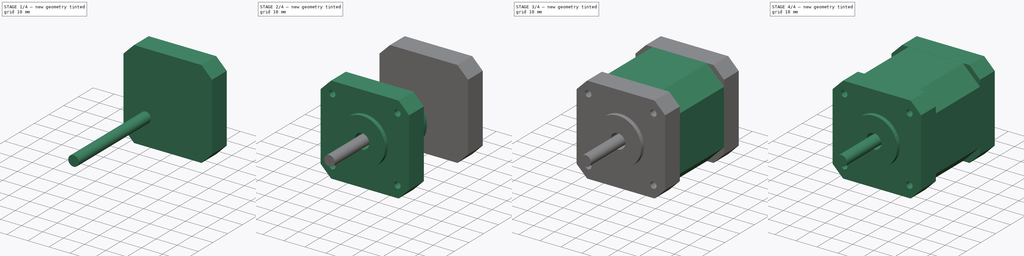
[diagram: build sequence overview — one tinted view per stage of 4, left to right]
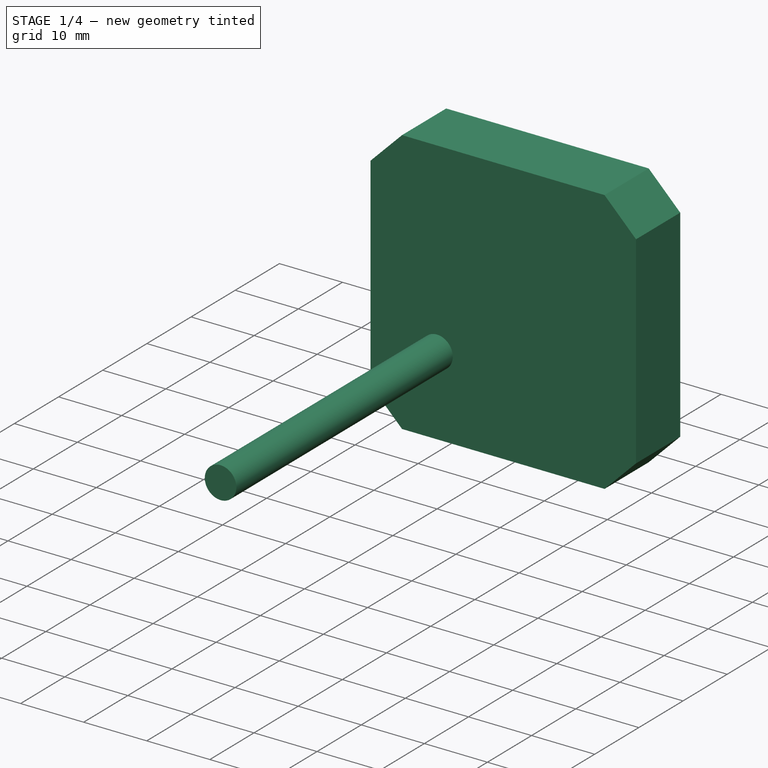
[diagram: stage 1 of 4 — iso view after this stage's code; geometry added in this stage tinted green]
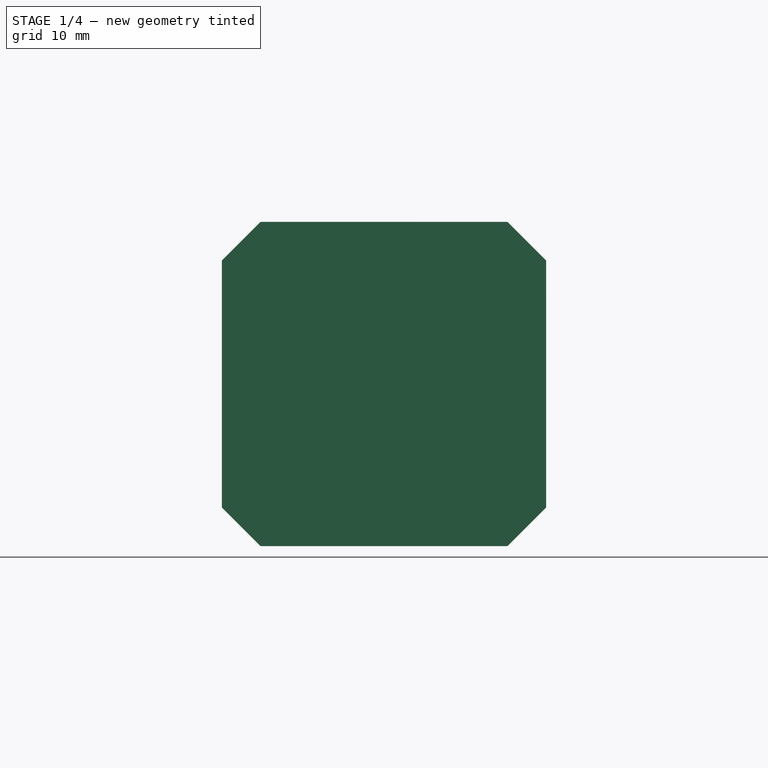
[diagram: stage 1 of 4 — front view after this stage's code; geometry added in this stage tinted green]
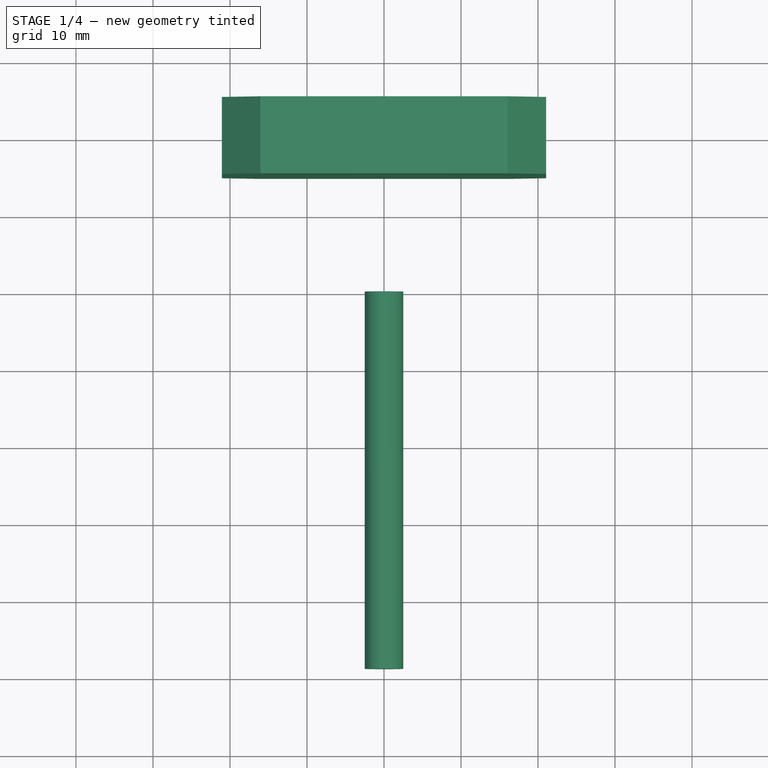
[diagram: stage 1 of 4 — top view after this stage's code; geometry added in this stage tinted green]
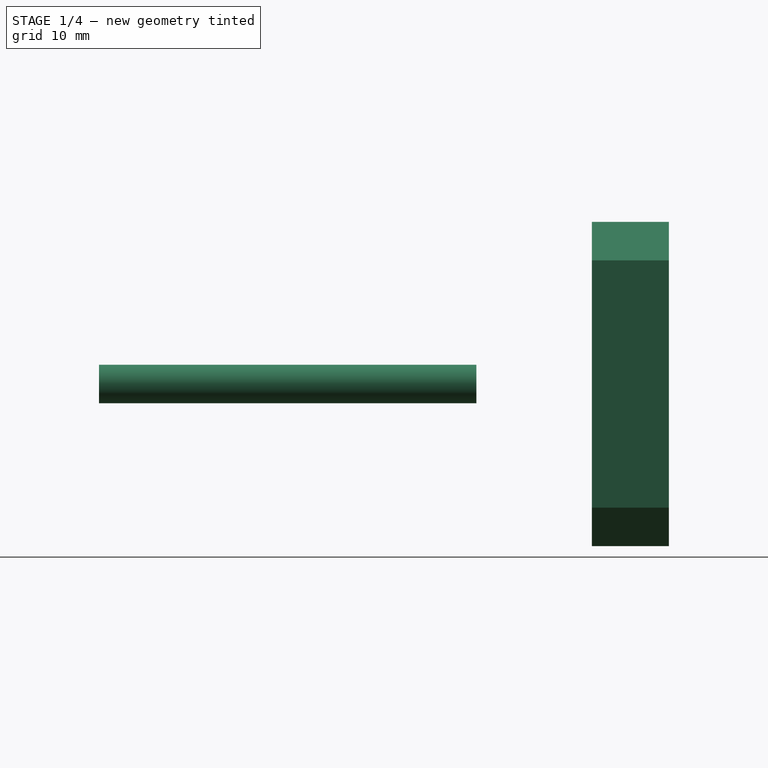
[diagram: stage 1 of 4 — right view after this stage's code; geometry added in this stage tinted green]
FCSTD DOCUMENT  (FreeCAD 0.15R4671 (Git))
Label: nema17
License: All rights reserved
LicenseURL: http://en.wikipedia.org/wiki/All_rights_reserved
objects: Sketcher::SketchObject×6, PartDesign::Pad×4, Part::MultiFuse×4, PartDesign::Revolution×1, PartDesign::Pocket×1
note: 22 computed .brp shape members not serialized (recipe doc carries the construction recipe); baked Part::Feature solids carry a one-line shape summary decoded from their .brp

FEATURE [Sketcher::SketchObject] Sketch004  label="back-sketch"
  Placement = pos=(0,15,0) rot=(0,0.707107,0.707107;3.14159rad)
  sketch-geometry (8):
    g0: LineSegment StartX=-21.05 StartY=-16.05 StartZ=0 EndX=-21.05 EndY=16.05 EndZ=0
    g1: LineSegment StartX=-21.05 StartY=16.05 StartZ=0 EndX=-16.05 EndY=21.05 EndZ=0
    g2: LineSegment StartX=-16.05 StartY=21.05 StartZ=0 EndX=16.05 EndY=21.05 EndZ=0
    g3: LineSegment StartX=16.05 StartY=21.05 StartZ=0 EndX=21.05 EndY=16.05 EndZ=0
    g4: LineSegment StartX=21.05 StartY=16.05 StartZ=0 EndX=21.05 EndY=-16.05 EndZ=0
    g5: LineSegment StartX=21.05 StartY=-16.05 StartZ=0 EndX=16.05 EndY=-21.05 EndZ=0
    g6: LineSegment StartX=16.05 StartY=-21.05 StartZ=0 EndX=-16.05 EndY=-21.05 EndZ=0
    g7: LineSegment StartX=-16.05 StartY=-21.05 StartZ=0 EndX=-21.05 EndY=-16.05 EndZ=0
  constraints (23):
    c: Coincident(g0,g1)
    c: Coincident(g1,g2)
    c: Horizontal(g2)
    c: Coincident(g2,g3)
    c: Coincident(g3,g4)
    c: Vertical(g4)
    c: Coincident(g4,g5)
    c: Coincident(g5,g6)
    c: Horizontal(g6)
    c: Coincident(g6,g7)
    c: Coincident(g0,g7)
    c: Vertical(g0)
    c: Equal(g5,g7)
    c: Equal(g7,g1)
    c: Equal(g1,g3)
    c: Equal(g2,g0)
    c: Equal(g0,g6)
    c: Equal(g6,g4)
    c: Symmetric(g1,g6,g-1)
    c: Symmetric(g0,g4,g-2)
    c: DistanceY(g2,g5) = -42.1
    c: DistanceX(g4,g0) = -42.1
    c: DistanceX(g1,g0) = -5
FEATURE [PartDesign::Pad] Pad002  label="back"
  Length = 10
  Length2 = 100
  Placement = pos=(0,15,0) rot=(0,0.707107,0.707107;3.14159rad)
  Sketch = -> Sketch004
  Type = 0
FEATURE [Sketcher::SketchObject] Sketch005  label="shaft-sketch"
  Placement = pos=(0,0,0) rot=(1,0,0;1.5708rad)
  sketch-geometry (1):
    g0: Circle CenterX=0 CenterY=0 CenterZ=0 NormalX=0 NormalY=0 NormalZ=1 Radius=2.5
  constraints (2):
    c: Coincident(g0,g-1)
    c: Radius(g0) = 2.5
FEATURE [PartDesign::Pad] Pad003  label="shaft"
  Length = 49
  Length2 = 100
  Placement = pos=(0,0,0) rot=(1,0,0;1.5708rad)
  Sketch = -> Sketch005
  Type = 0
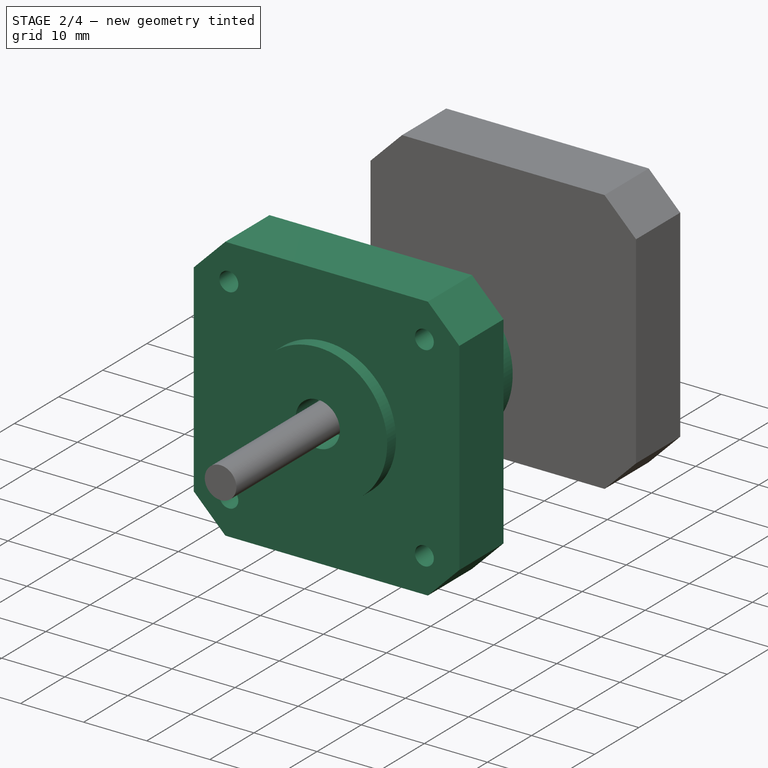
[diagram: stage 2 of 4 — iso view after this stage's code; geometry added in this stage tinted green]
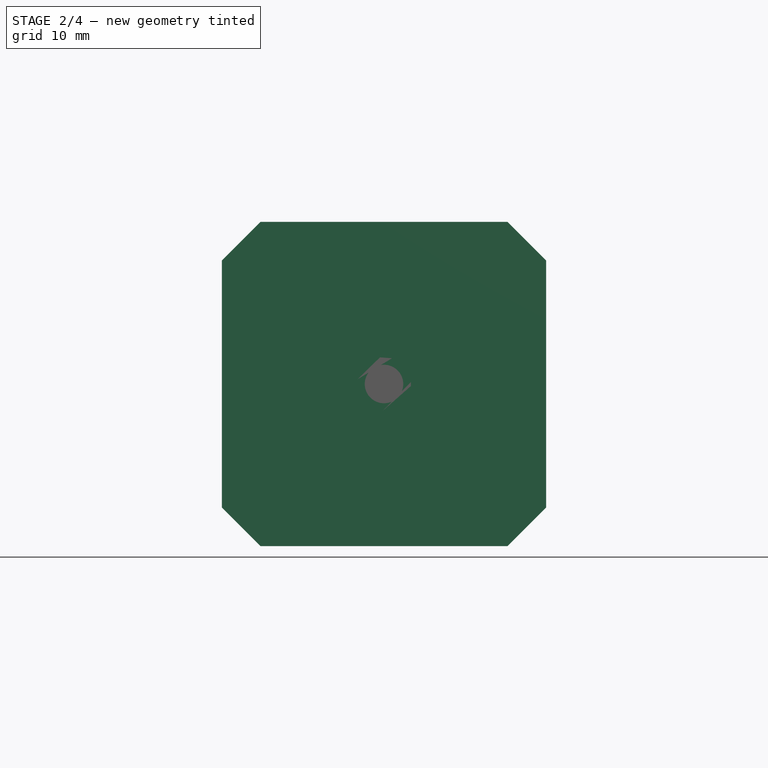
[diagram: stage 2 of 4 — front view after this stage's code; geometry added in this stage tinted green]
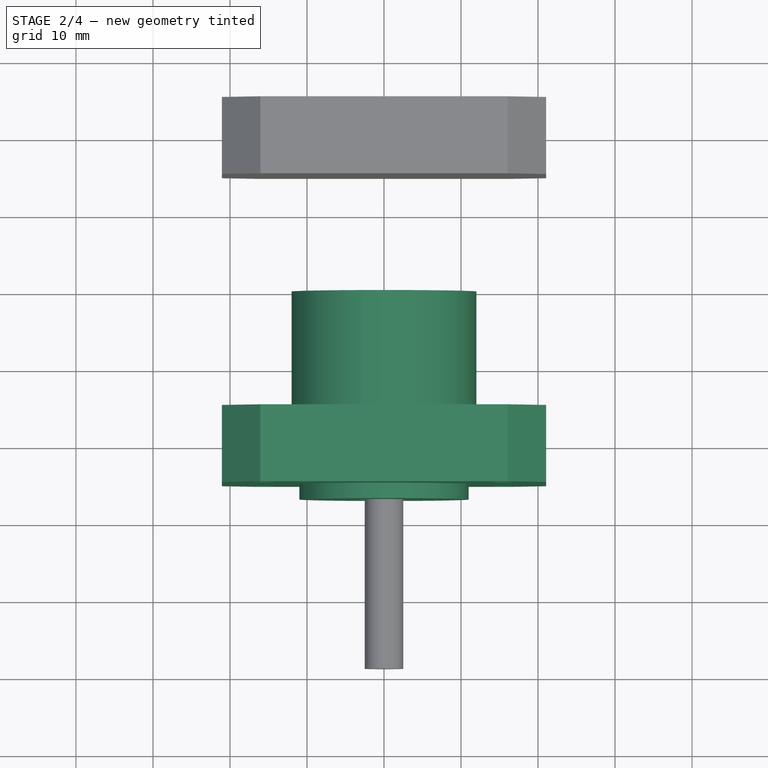
[diagram: stage 2 of 4 — top view after this stage's code; geometry added in this stage tinted green]
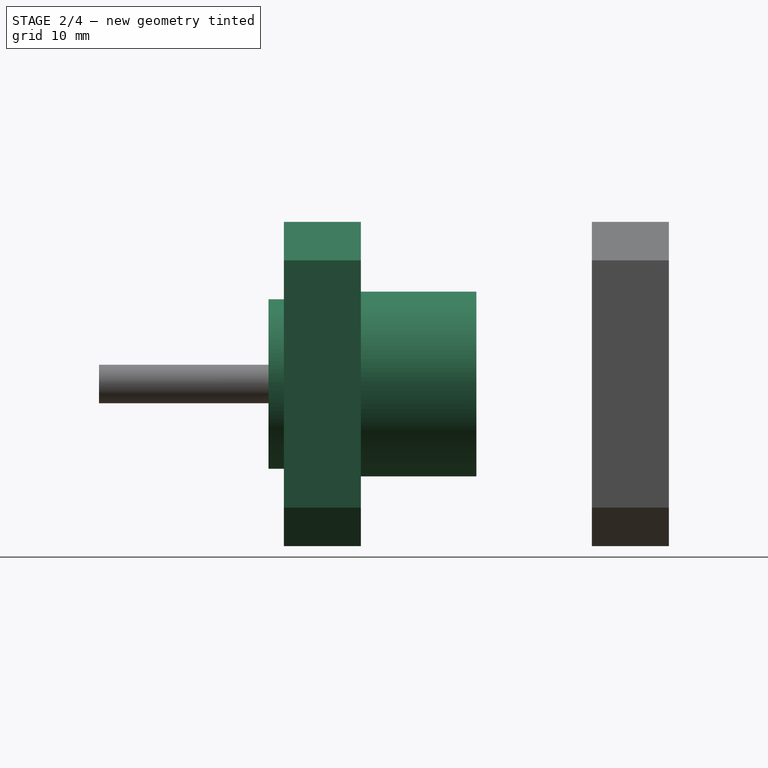
[diagram: stage 2 of 4 — right view after this stage's code; geometry added in this stage tinted green]
FEATURE [Sketcher::SketchObject] Sketch001  label="center-sketch"
  Placement = pos=(0,0,0) rot=(0.57735,0.57735,0.57735;2.0944rad)
  sketch-geometry (8):
    g0: LineSegment StartX=-24 StartY=12 StartZ=0 EndX=0 EndY=12 EndZ=0
    g1: LineSegment StartX=-27 StartY=11 StartZ=0 EndX=-24 EndY=11 EndZ=0
    g2: LineSegment StartX=-24 StartY=11 StartZ=0 EndX=-24 EndY=12 EndZ=0
    g3: LineSegment StartX=-27 StartY=11 StartZ=0 EndX=-27 EndY=3.5 EndZ=0
    g4: LineSegment StartX=-27 StartY=3.5 StartZ=0 EndX=-22 EndY=3.5 EndZ=0
    g5: LineSegment StartX=-22 StartY=3.5 StartZ=0 EndX=-22 EndY=0 EndZ=0
    g6: LineSegment StartX=-22 StartY=0 StartZ=0 EndX=0 EndY=0 EndZ=0
    g7: LineSegment StartX=0 StartY=0 StartZ=0 EndX=0 EndY=12 EndZ=0
  constraints (23):
    c: Horizontal(g0)
    c: Coincident(g1,g2)
    c: Coincident(g2,g0)
    c: Coincident(g1,g3)
    c: Vertical(g3)
    c: Coincident(g3,g4)
    c: Horizontal(g4)
    c: Coincident(g4,g5)
    c: Vertical(g5)
    c: Vertical(g2)
    c: DistanceX(g0,g0) = 24
    c: DistanceX(g1,g1) = 3
    c: Coincident(g5,g6)
    c: Coincident(g6,g-1)
    c: Horizontal(g6)
    c: Coincident(g6,g7)
    c: Coincident(g7,g0)
    c: Vertical(g7)
    c: DistanceY(g5,g3) = 3.5
    c: DistanceY(g-1,g0) = 12
    c: DistanceY(g1,g5) = -11
    c: Horizontal(g1)
    c: DistanceX(g3,g5) = 5
FEATURE [PartDesign::Revolution] Revolution  label="center"
  Angle = 360
  Axis = (0,1,0)
  Base = (0,0,0)
  Placement = pos=(0,0,0) rot=(0.57735,0.57735,0.57735;2.0944rad)
  ReferenceAxis = -> Sketch001 [H_Axis]
  Sketch = -> Sketch001
FEATURE [Sketcher::SketchObject] Sketch002  label="front-sketch"
  Placement = pos=(0,-15,0) rot=(1,0,0;1.5708rad)
  sketch-geometry (9):
    g0: LineSegment StartX=-21.05 StartY=-16.05 StartZ=0 EndX=-21.05 EndY=16.05 EndZ=0
    g1: LineSegment StartX=-21.05 StartY=16.05 StartZ=0 EndX=-16.05 EndY=21.05 EndZ=0
    g2: LineSegment StartX=-16.05 StartY=21.05 StartZ=0 EndX=16.05 EndY=21.05 EndZ=0
    g3: LineSegment StartX=16.05 StartY=21.05 StartZ=0 EndX=21.05 EndY=16.05 EndZ=0
    g4: LineSegment StartX=21.05 StartY=16.05 StartZ=0 EndX=21.05 EndY=-16.05 EndZ=0
    g5: LineSegment StartX=21.05 StartY=-16.05 StartZ=0 EndX=16.05 EndY=-21.05 EndZ=0
    g6: LineSegment StartX=16.05 StartY=-21.05 StartZ=0 EndX=-16.05 EndY=-21.05 EndZ=0
    g7: LineSegment StartX=-16.05 StartY=-21.05 StartZ=0 EndX=-21.05 EndY=-16.05 EndZ=0
    g8: Circle CenterX=0 CenterY=0 CenterZ=0 NormalX=0 NormalY=0 NormalZ=1 Radius=11
  constraints (25):
    c: Vertical(g0)
    c: Coincident(g0,g1)
    c: Coincident(g1,g2)
    c: Horizontal(g2)
    c: Coincident(g2,g3)
    c: Coincident(g3,g4)
    c: Vertical(g4)
    c: Coincident(g4,g5)
    c: Coincident(g5,g6)
    c: Coincident(g6,g7)
    c: Coincident(g7,g0)
    c: Horizontal(g6)
    c: Equal(g1,g3)
    c: Equal(g3,g5)
    c: Equal(g5,g7)
    c: Equal(g6,g0)
    c: Equal(g0,g2)
    c: Equal(g2,g4)
    c: Symmetric(g1,g6,g-1)
    c: Symmetric(g0,g3,g-2)
    c: DistanceY(g2,g5) = -42.1
    c: DistanceX(g4,g0) = -42.1
    c: DistanceX(g1,g0) = -5
    c: Coincident(g8,g-1)
    c: Radius(g8) = 11
FEATURE [PartDesign::Pad] Pad001  label="front"
  Length = 10
  Length2 = 100
  Placement = pos=(0,-15,0) rot=(1,0,0;1.5708rad)
  Sketch = -> Sketch002
  Type = 0
FEATURE [Sketcher::SketchObject] Sketch003  label="front-holes-sketch"
  Placement = pos=(0,-25,0) rot=(1,0,0;1.5708rad)
  Support = -> Pad001 [Face11]
  sketch-geometry (8):
    g0: LineSegment [constr] StartX=-15.5 StartY=15.5 StartZ=0 EndX=15.5 EndY=15.5 EndZ=0
    g1: LineSegment [constr] StartX=15.5 StartY=15.5 StartZ=0 EndX=15.5 EndY=-15.5 EndZ=0
    g2: LineSegment [constr] StartX=15.5 StartY=-15.5 StartZ=0 EndX=-15.5 EndY=-15.5 EndZ=0
    g3: LineSegment [constr] StartX=-15.5 StartY=-15.5 StartZ=0 EndX=-15.5 EndY=15.5 EndZ=0
    g4: Circle CenterX=-15.5 CenterY=15.5 CenterZ=0 NormalX=0 NormalY=0 NormalZ=1 Radius=1.5
    g5: Circle CenterX=15.5 CenterY=15.5 CenterZ=0 NormalX=0 NormalY=0 NormalZ=1 Radius=1.5
    g6: Circle CenterX=-15.5 CenterY=-15.5 CenterZ=0 NormalX=0 NormalY=0 NormalZ=1 Radius=1.5
    g7: Circle CenterX=15.5 CenterY=-15.5 CenterZ=0 NormalX=0 NormalY=0 NormalZ=1 Radius=1.5
  constraints (19):
    c: Coincident(g0,g1)
    c: Coincident(g1,g2)
    c: Coincident(g2,g3)
    c: Coincident(g3,g0)
    c: Horizontal(g0)
    c: Horizontal(g2)
    c: Vertical(g1)
    c: Vertical(g3)
    c: Symmetric(g2,g0,g-1)
    c: Coincident(g4,g0)
    c: Coincident(g5,g0)
    c: Coincident(g6,g2)
    c: Coincident(g7,g1)
    c: Radius(g4) = 1.5
    c: Equal(g4,g5)
    c: Equal(g4,g7)
    c: Equal(g4,g6)
    c: DistanceX(g2,g1) = 31
    c: Equal(g0,g3)
FEATURE [PartDesign::Pocket] Pocket  label="front-holes"
  Length = 4.5
  Placement = pos=(0,-15,0) rot=(1,0,0;1.5708rad)
  Sketch = -> Sketch003
  Type = 0
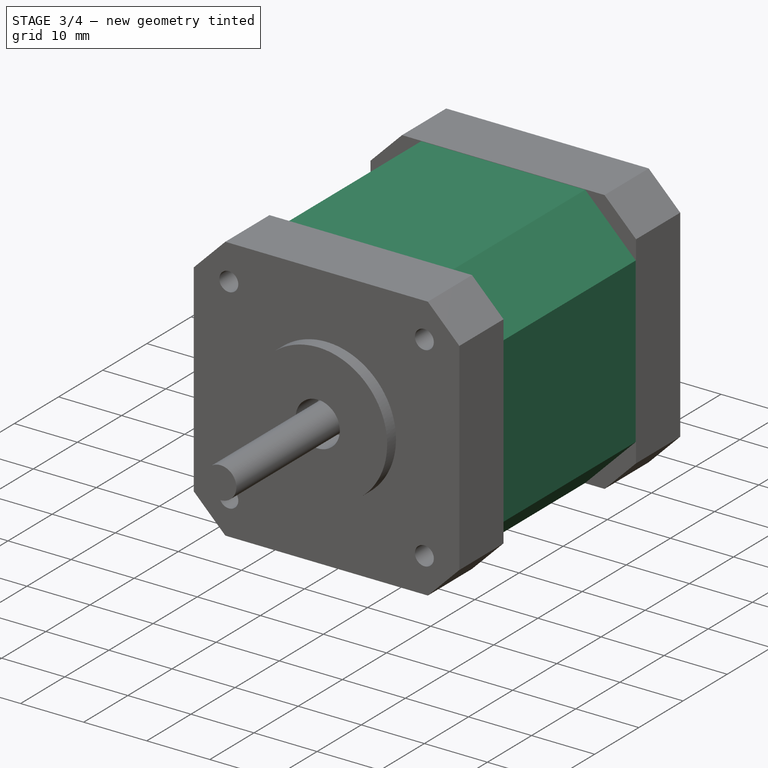
[diagram: stage 3 of 4 — iso view after this stage's code; geometry added in this stage tinted green]
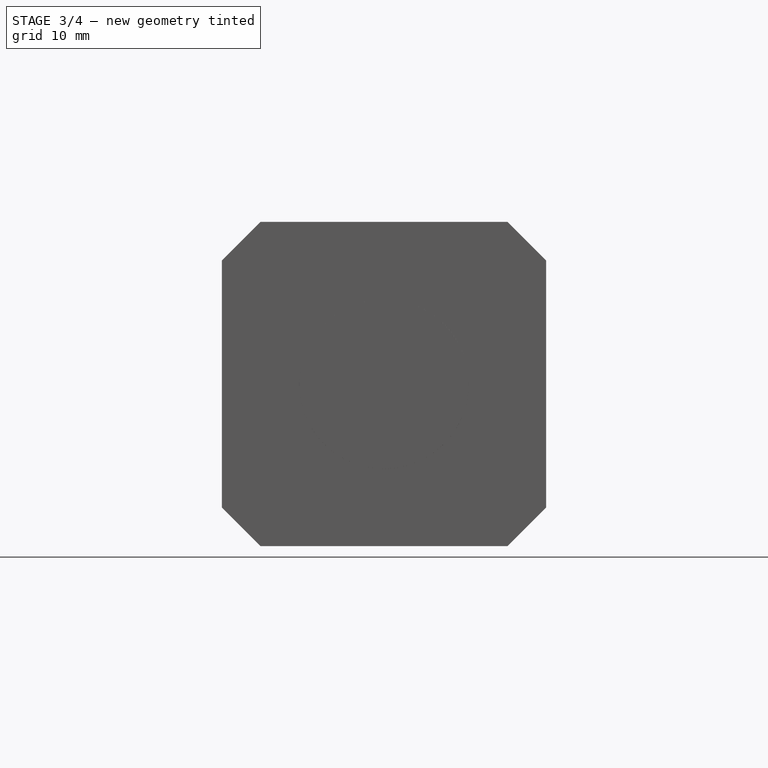
[diagram: stage 3 of 4 — front view after this stage's code; geometry added in this stage tinted green]
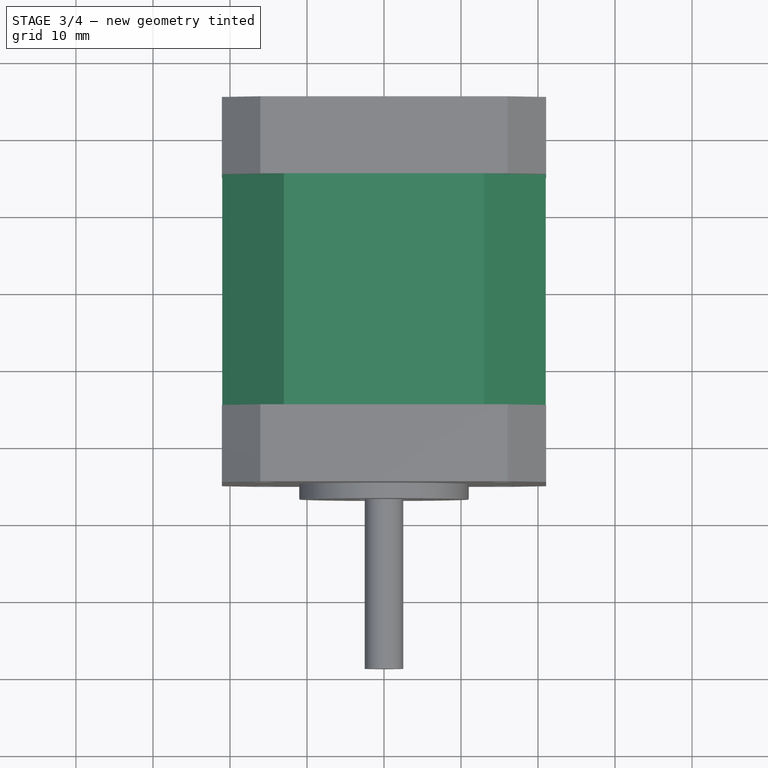
[diagram: stage 3 of 4 — top view after this stage's code; geometry added in this stage tinted green]
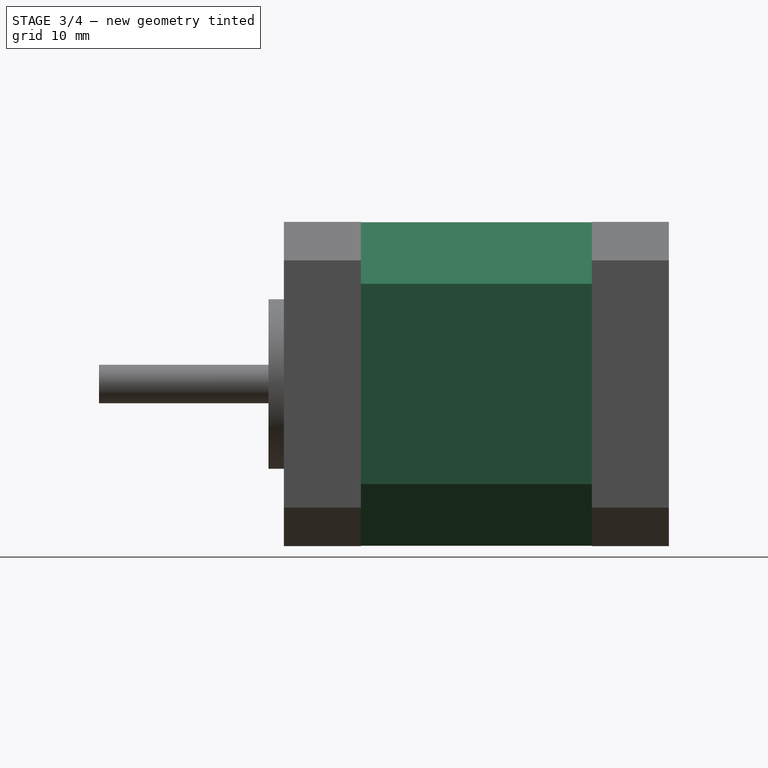
[diagram: stage 3 of 4 — right view after this stage's code; geometry added in this stage tinted green]
FEATURE [Sketcher::SketchObject] Sketch  label="middle-sketch"
  Placement = pos=(0,0,0) rot=(1,0,0;1.5708rad)
  sketch-geometry (8):
    g0: LineSegment StartX=-21 StartY=13 StartZ=0 EndX=-21 EndY=-13 EndZ=0
    g1: LineSegment StartX=-21 StartY=-13 StartZ=0 EndX=-13 EndY=-21 EndZ=0
    g2: LineSegment StartX=-13 StartY=-21 StartZ=0 EndX=13 EndY=-21 EndZ=0
    g3: LineSegment StartX=13 StartY=-21 StartZ=0 EndX=21 EndY=-13 EndZ=0
    g4: LineSegment StartX=21 StartY=-13 StartZ=0 EndX=21 EndY=13 EndZ=0
    g5: LineSegment StartX=21 StartY=13 StartZ=0 EndX=13 EndY=21 EndZ=0
    g6: LineSegment StartX=13 StartY=21 StartZ=0 EndX=-13 EndY=21 EndZ=0
    g7: LineSegment StartX=-13 StartY=21 StartZ=0 EndX=-21 EndY=13 EndZ=0
  constraints (23):
    c: Vertical(g0)
    c: Coincident(g0,g1)
    c: Coincident(g1,g2)
    c: Horizontal(g2)
    c: Coincident(g2,g3)
    c: Coincident(g3,g4)
    c: Vertical(g4)
    c: Coincident(g4,g5)
    c: Coincident(g5,g6)
    c: Horizontal(g6)
    c: Coincident(g6,g7)
    c: Coincident(g7,g0)
    c: Equal(g2,g0)
    c: Equal(g0,g6)
    c: Equal(g6,g4)
    c: Equal(g5,g7)
    c: Equal(g7,g1)
    c: Equal(g1,g3)
    c: Symmetric(g6,g1,g-1)
    c: Symmetric(g0,g4,g-2)
    c: DistanceY(g2,g5) = 42
    c: DistanceX(g0,g3) = 42
    c: DistanceX(g6,g0) = -8
FEATURE [PartDesign::Pad] Pad  label="middle"
  Length = 30
  Length2 = 100
  Midplane = true
  Placement = pos=(0,0,0) rot=(1,0,0;1.5708rad)
  Sketch = -> Sketch
  Type = 0
FEATURE [Part::MultiFuse] Fusion  label="middle-center"
  Shapes = -> [Pad,Revolution]
FEATURE [Part::MultiFuse] Fusion001  label="front-middle-center"
  Shapes = -> [Fusion,Pocket]
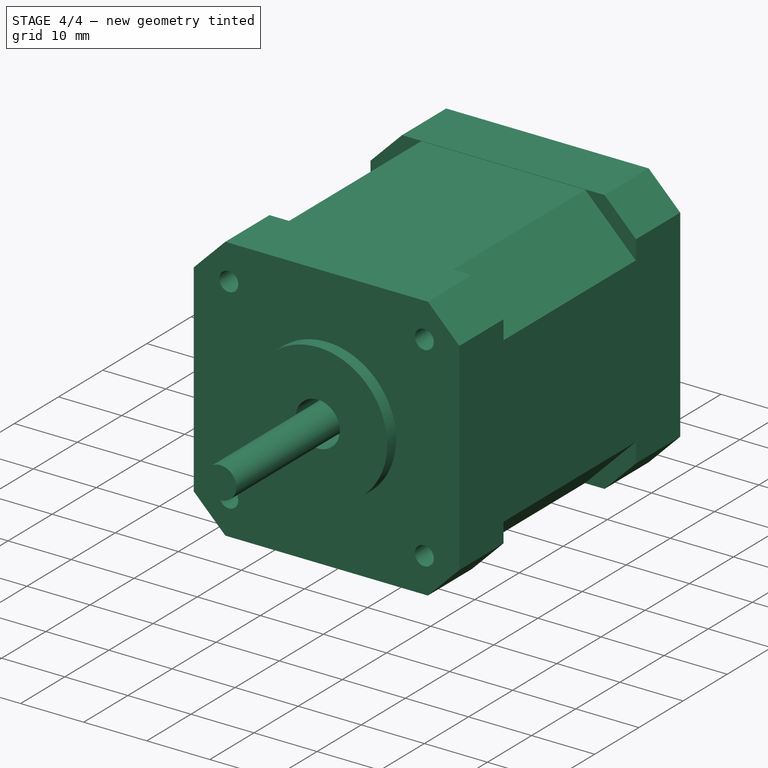
[diagram: stage 4 of 4 — iso view after this stage's code; geometry added in this stage tinted green]
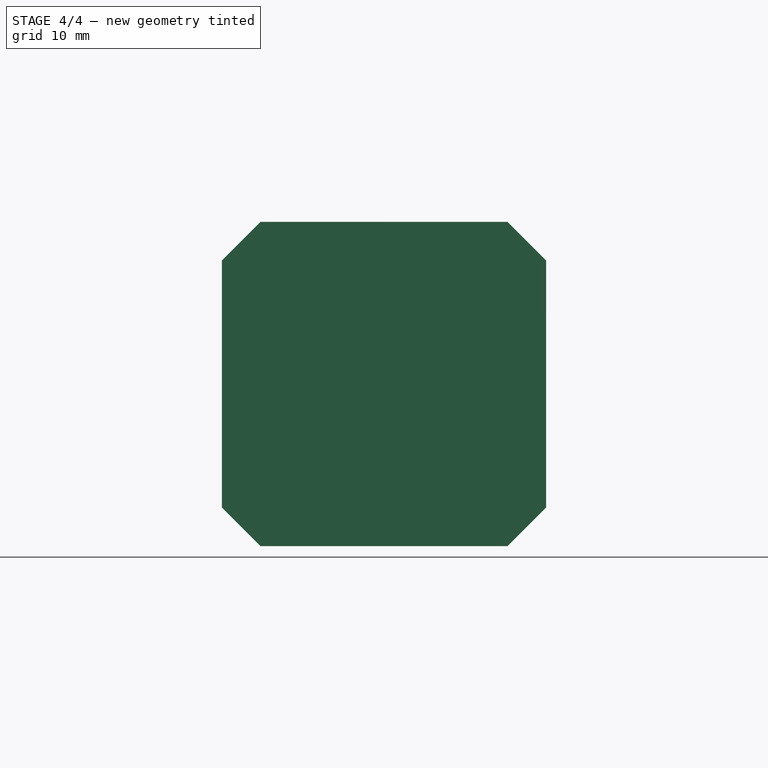
[diagram: stage 4 of 4 — front view after this stage's code; geometry added in this stage tinted green]
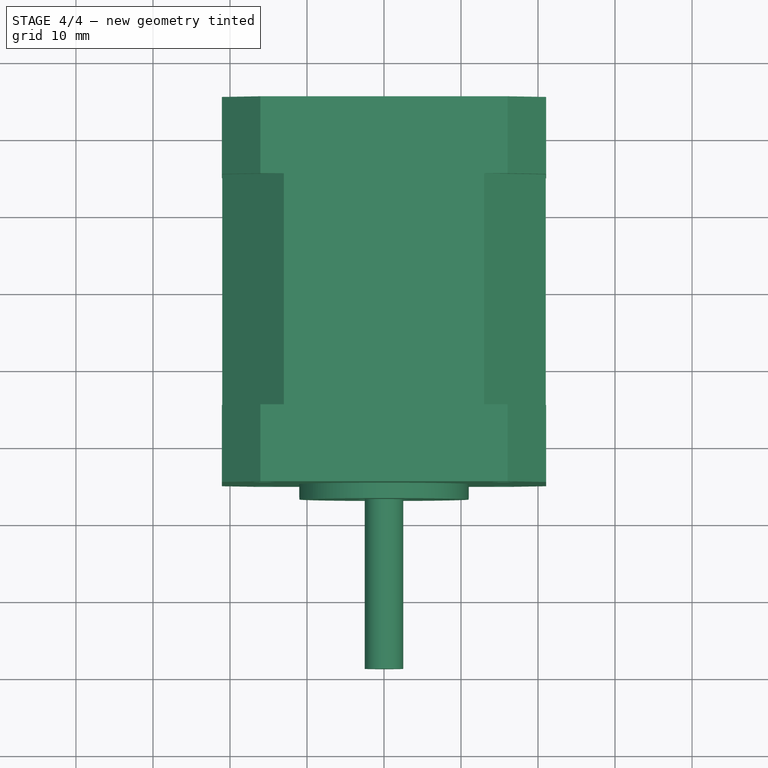
[diagram: stage 4 of 4 — top view after this stage's code; geometry added in this stage tinted green]
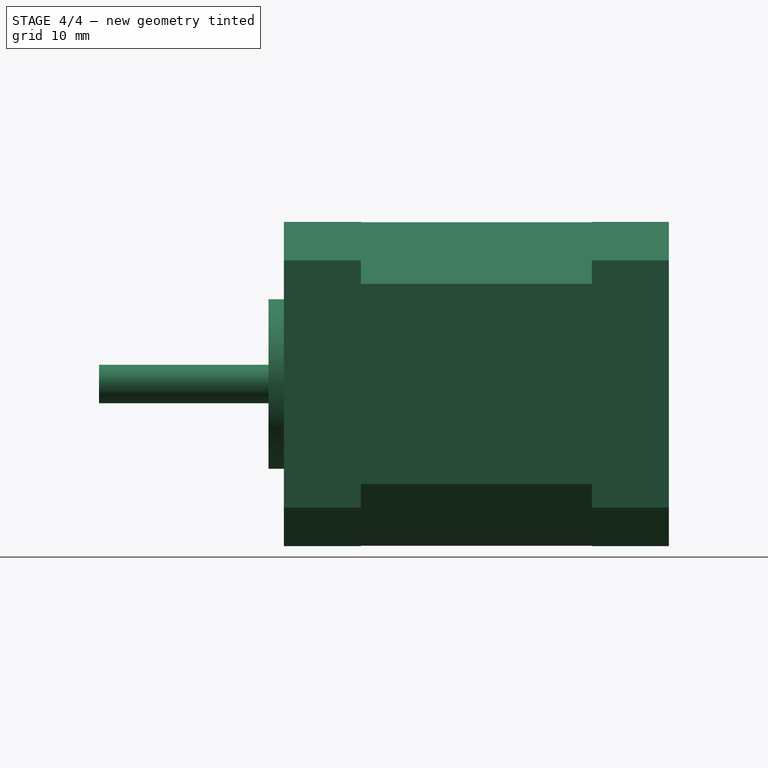
[diagram: stage 4 of 4 — right view after this stage's code; geometry added in this stage tinted green]
FEATURE [Part::MultiFuse] Fusion002  label="motor"
  Shapes = -> [Pad002,Fusion001]
FEATURE [Part::MultiFuse] Fusion003  label="nema17"
  Shapes = -> [Fusion002,Pad003]
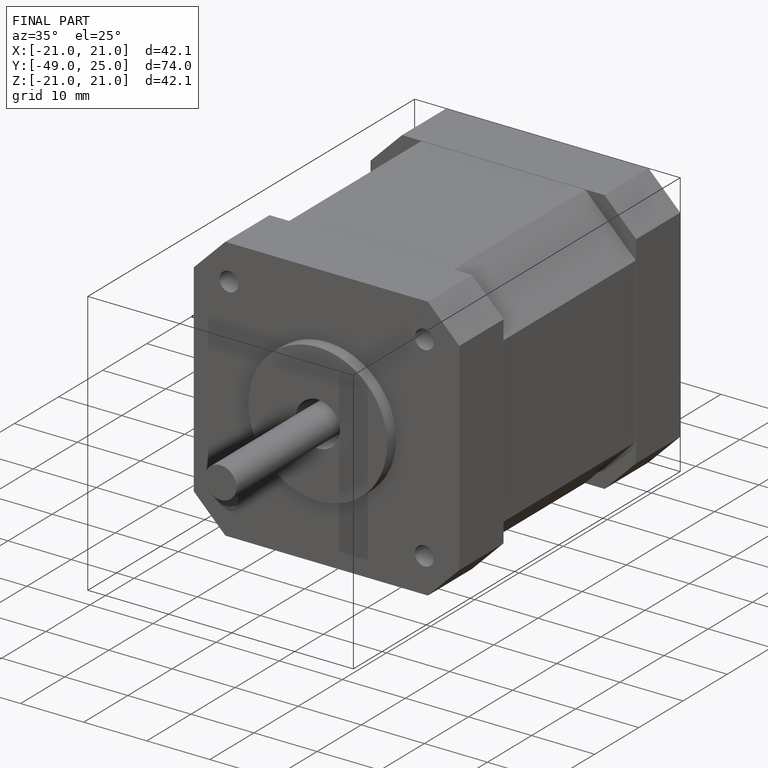
[diagram: finished part — iso view with bounding-box wireframe]
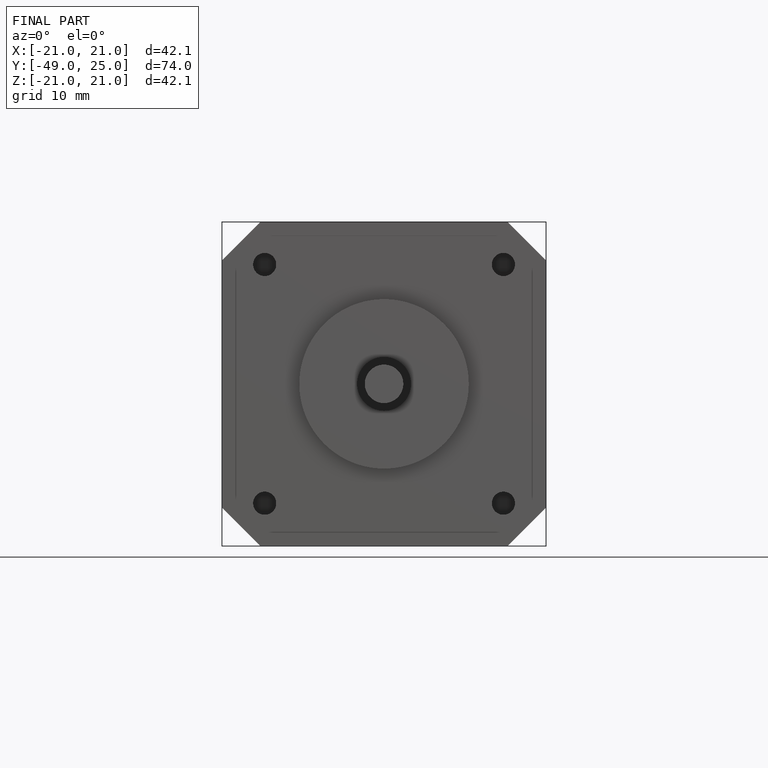
[diagram: finished part — front view with bounding-box wireframe]
